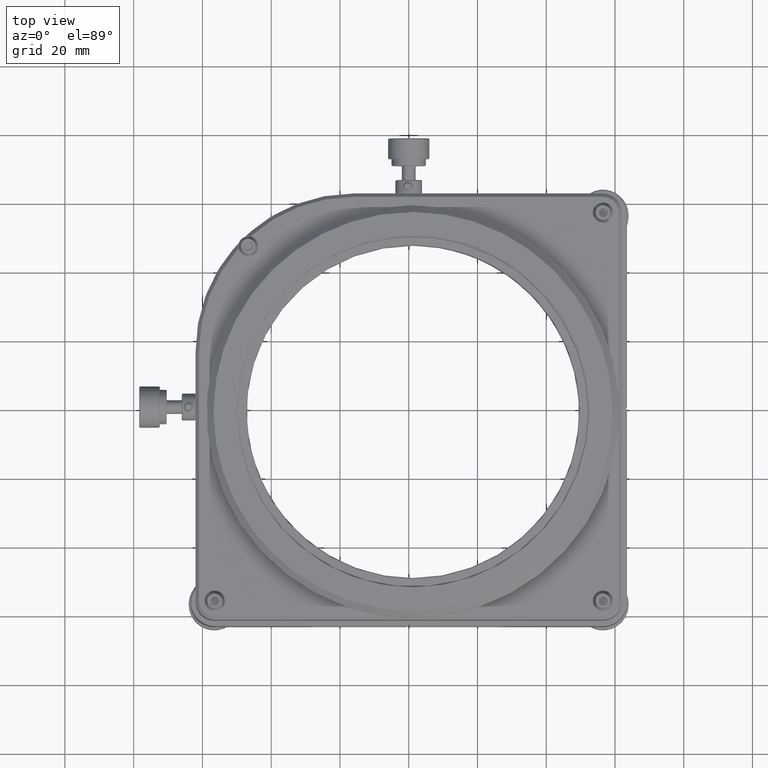
[diagram: clean part render]
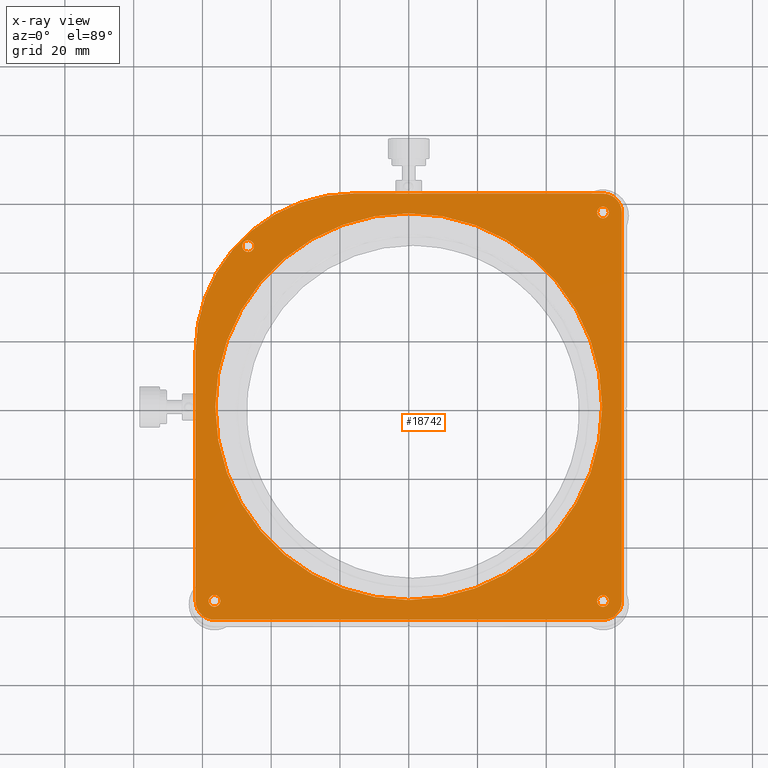
[diagram: x-ray — body ghosted, one internal face saturated and labeled with its STEP entity id]
A machine part, top view, then the same camera in x-ray: the body is ghosted and one INTERNAL B-rep face — a face not visible from any outside direction — is saturated and labeled: STEP entity #18742.
In plain terms, the highlighted planar face has unit normal (-0, 0, 1).
Its self-contained STEP definition (entity closure, byte-faithful):
#131 = DIRECTION ( 'NONE',  ( 2.886951366338683759E-18, -9.775351399719950602E-17, -1.000000000000000000 ) ) ;
#1608 = CARTESIAN_POINT ( 'NONE',  ( 56.49999999999891287, -58.20000000000066365, 27.49999999999998934 ) ) ;
#2148 = DIRECTION ( 'NONE',  ( 2.886951366338683759E-18, -9.775351399719950602E-17, -1.000000000000000000 ) ) ;
#3311 = DIRECTION ( 'NONE',  ( 0.000000000000000000, 1.000000000000000000, 0.000000000000000000 ) ) ;
#4623 = CARTESIAN_POINT ( 'NONE',  ( -1.178446937644093147E-12, -6.331053770638577055E-13, 27.49999999999998224 ) ) ;
#4962 = VERTEX_POINT ( 'NONE', #82286 ) ;
#6112 = DIRECTION ( 'NONE',  ( 0.000000000000000000, -1.000000000000000000, 1.233581138472396211E-16 ) ) ;
#8711 = AXIS2_PLACEMENT_3D ( 'NONE', #145058, #63014, #85291 ) ;
#9999 = CARTESIAN_POINT ( 'NONE',  ( 56.49999999999891287, -56.50000000000066080, 27.49999999999998934 ) ) ;
#10784 = ORIENTED_EDGE ( 'NONE', *, *, #137496, .F. ) ;
#11183 = CARTESIAN_POINT ( 'NONE',  ( 56.49999999999891287, -54.80000000000065796, 27.49999999999998934 ) ) ;
#12292 = AXIS2_PLACEMENT_3D ( 'NONE', #119202, #145952, #3311 ) ;
#12512 = ORIENTED_EDGE ( 'NONE', *, *, #90329, .F. ) ;
#13653 = CARTESIAN_POINT ( 'NONE',  ( -16.00000000000117240, 61.99999999999937472, 27.49999999999997513 ) ) ;
#14459 = CARTESIAN_POINT ( 'NONE',  ( -62.00000000000117240, -56.50000000000063238, 27.49999999999998934 ) ) ;
#14691 = EDGE_CURVE ( 'NONE', #140335, #51179, #38010, .T. ) ;
#16009 = AXIS2_PLACEMENT_3D ( 'NONE', #118087, #39556, #28070 ) ;
#18742 = ADVANCED_FACE ( 'NONE', ( #33456, #20422, #67257, #114796, #115560, #80288 ), #102524, .F. ) ;
#19019 = DIRECTION ( 'NONE',  ( 0.000000000000000000, 1.000000000000000000, 0.000000000000000000 ) ) ;
#19162 = CARTESIAN_POINT ( 'NONE',  ( -16.00000000000117240, 15.99999999999936939, 27.49999999999997868 ) ) ;
#20422 = FACE_BOUND ( 'NONE', #147707, .T. ) ;
#21959 = DIRECTION ( 'NONE',  ( 0.000000000000000000, -1.000000000000000000, 9.775351399719950602E-17 ) ) ;
#22043 = ORIENTED_EDGE ( 'NONE', *, *, #32434, .F. ) ;
#22291 = DIRECTION ( 'NONE',  ( 2.886951366338683759E-18, -9.775351399719950602E-17, -1.000000000000000000 ) ) ;
#22505 = ORIENTED_EDGE ( 'NONE', *, *, #38541, .F. ) ;
#22662 = CARTESIAN_POINT ( 'NONE',  ( -46.70000000000114682, 44.99999999999934630, 27.49999999999997868 ) ) ;
#24444 = AXIS2_PLACEMENT_3D ( 'NONE', #116690, #36081, #107450 ) ;
#25344 = EDGE_LOOP ( 'NONE', ( #101688, #73119 ) ) ;
#26059 = DIRECTION ( 'NONE',  ( 0.000000000000000000, -1.000000000000000000, 0.000000000000000000 ) ) ;
#28070 = DIRECTION ( 'NONE',  ( 0.000000000000000000, -1.000000000000000000, 0.000000000000000000 ) ) ;
#28456 = CARTESIAN_POINT ( 'NONE',  ( -1.178446937644093147E-12, -62.00000000000063238, 27.49999999999998934 ) ) ;
#29211 = LINE ( 'NONE', #28456, #106690 ) ;
#30087 = CARTESIAN_POINT ( 'NONE',  ( 56.49999999999882050, 61.99999999999938183, 27.49999999999997513 ) ) ;
#31554 = AXIS2_PLACEMENT_3D ( 'NONE', #61370, #37553, #26059 ) ;
#32434 = EDGE_CURVE ( 'NONE', #112220, #130636, #136920, .T. ) ;
#32471 = CARTESIAN_POINT ( 'NONE',  ( -46.70000000000114682, 48.39999999999934488, 27.49999999999997868 ) ) ;
#33456 = FACE_OUTER_BOUND ( 'NONE', #55376, .T. ) ;
#34003 = DIRECTION ( 'NONE',  ( 0.000000000000000000, -1.000000000000000000, 1.233581138472396211E-16 ) ) ;
#34953 = CARTESIAN_POINT ( 'NONE',  ( 56.49999999999873523, 54.79999999999935767, 27.49999999999997513 ) ) ;
#36049 = AXIS2_PLACEMENT_3D ( 'NONE', #129884, #93091, #34003 ) ;
#36081 = DIRECTION ( 'NONE',  ( -2.886951366338683759E-18, 9.775351399719950602E-17, 1.000000000000000000 ) ) ;
#37032 = AXIS2_PLACEMENT_3D ( 'NONE', #72015, #2148, #129533 ) ;
#37553 = DIRECTION ( 'NONE',  ( 2.886951366338683759E-18, -9.775351399719950602E-17, -1.000000000000000000 ) ) ;
#38010 = CIRCLE ( 'NONE', #16009, 1.700000000000000178 ) ;
#38114 = LINE ( 'NONE', #73469, #127103 ) ;
#38541 = EDGE_CURVE ( 'NONE', #4962, #119348, #79527, .T. ) ;
#39556 = DIRECTION ( 'NONE',  ( 2.886951366338683759E-18, -9.775351399719950602E-17, -1.000000000000000000 ) ) ;
#40246 = ORIENTED_EDGE ( 'NONE', *, *, #106632, .F. ) ;
#40300 = AXIS2_PLACEMENT_3D ( 'NONE', #101104, #127157, #19019 ) ;
#41903 = VERTEX_POINT ( 'NONE', #30087 ) ;
#41909 = EDGE_CURVE ( 'NONE', #122863, #71159, #86934, .T. ) ;
#42507 = CARTESIAN_POINT ( 'NONE',  ( 56.49999999999882760, -62.00000000000062528, 27.49999999999998934 ) ) ;
#42827 = ORIENTED_EDGE ( 'NONE', *, *, #70010, .F. ) ;
#42934 = DIRECTION ( 'NONE',  ( 0.000000000000000000, 1.000000000000000000, -7.542275982507857147E-17 ) ) ;
#43806 = ORIENTED_EDGE ( 'NONE', *, *, #109486, .F. ) ;
#49960 = ORIENTED_EDGE ( 'NONE', *, *, #90657, .F. ) ;
#51179 = VERTEX_POINT ( 'NONE', #22662 ) ;
#52186 = DIRECTION ( 'NONE',  ( -2.886951366338683759E-18, 9.775351399719950602E-17, 1.000000000000000000 ) ) ;
#55376 = EDGE_LOOP ( 'NONE', ( #94996, #42827, #72440, #22505, #58003, #12512, #40246, #55787 ) ) ;
#55787 = ORIENTED_EDGE ( 'NONE', *, *, #118260, .F. ) ;
#58003 = ORIENTED_EDGE ( 'NONE', *, *, #133935, .F. ) ;
#59845 = VERTEX_POINT ( 'NONE', #102974 ) ;
#61370 = CARTESIAN_POINT ( 'NONE',  ( 56.49999999999873523, 56.49999999999935341, 27.49999999999997513 ) ) ;
#61923 = DIRECTION ( 'NONE',  ( -1.000000000000000000, -2.822096407986227892E-34, -2.886951366338684144E-18 ) ) ;
#63014 = DIRECTION ( 'NONE',  ( 2.886951366338683759E-18, -9.775351399719950602E-17, -1.000000000000000000 ) ) ;
#63335 = CIRCLE ( 'NONE', #82937, 46.00000000000000000 ) ;
#65386 = DIRECTION ( 'NONE',  ( 2.886951366338683759E-18, -9.775351399719950602E-17, -1.000000000000000000 ) ) ;
#65976 = DIRECTION ( 'NONE',  ( 0.000000000000000000, -1.000000000000000000, 0.000000000000000000 ) ) ;
#67085 = CARTESIAN_POINT ( 'NONE',  ( 61.99999999999882050, 56.49999999999938183, 27.49999999999997513 ) ) ;
#67257 = FACE_BOUND ( 'NONE', #68012, .T. ) ;
#68012 = EDGE_LOOP ( 'NONE', ( #22043, #43806 ) ) ;
#69477 = EDGE_LOOP ( 'NONE', ( #49960, #115222 ) ) ;
#70010 = EDGE_CURVE ( 'NONE', #41903, #74049, #38114, .T. ) ;
#71018 = CIRCLE ( 'NONE', #24444, 5.499999999999998224 ) ;
#71159 = VERTEX_POINT ( 'NONE', #117520 ) ;
#72015 = CARTESIAN_POINT ( 'NONE',  ( 56.49999999999891287, -56.50000000000066080, 27.49999999999998934 ) ) ;
#72440 = ORIENTED_EDGE ( 'NONE', *, *, #120102, .F. ) ;
#72810 = CIRCLE ( 'NONE', #75206, 1.700000000000000178 ) ;
#73119 = ORIENTED_EDGE ( 'NONE', *, *, #41909, .F. ) ;
#73469 = CARTESIAN_POINT ( 'NONE',  ( -1.178446937644093147E-12, 61.99999999999938183, 27.49999999999997513 ) ) ;
#74049 = VERTEX_POINT ( 'NONE', #13653 ) ;
#74946 = CIRCLE ( 'NONE', #8711, 1.700000000000000178 ) ;
#75206 = AXIS2_PLACEMENT_3D ( 'NONE', #135764, #76753, #65976 ) ;
#76753 = DIRECTION ( 'NONE',  ( 2.886951366338683759E-18, -9.775351399719950602E-17, -1.000000000000000000 ) ) ;
#76874 = CARTESIAN_POINT ( 'NONE',  ( -62.00000000000117240, 15.99999999999936939, 27.49999999999998224 ) ) ;
#76926 = CARTESIAN_POINT ( 'NONE',  ( -56.50000000000115818, -56.50000000000063949, 27.49999999999998934 ) ) ;
#78446 = CIRCLE ( 'NONE', #12292, 5.499999999999998224 ) ;
#78910 = EDGE_CURVE ( 'NONE', #74049, #137969, #63335, .T. ) ;
#79364 = ORIENTED_EDGE ( 'NONE', *, *, #82551, .F. ) ;
#79437 = VERTEX_POINT ( 'NONE', #151091 ) ;
#79527 = LINE ( 'NONE', #135520, #98868 ) ;
#80288 = FACE_BOUND ( 'NONE', #69477, .T. ) ;
#82286 = CARTESIAN_POINT ( 'NONE',  ( 61.99999999999882760, -56.50000000000061817, 27.49999999999998934 ) ) ;
#82551 = EDGE_CURVE ( 'NONE', #143960, #83506, #115096, .T. ) ;
#82937 = AXIS2_PLACEMENT_3D ( 'NONE', #19162, #52186, #42934 ) ;
#83476 = ORIENTED_EDGE ( 'NONE', *, *, #144144, .F. ) ;
#83506 = VERTEX_POINT ( 'NONE', #11183 ) ;
#85291 = DIRECTION ( 'NONE',  ( 0.000000000000000000, -1.000000000000000000, 0.000000000000000000 ) ) ;
#86934 = CIRCLE ( 'NONE', #118800, 1.700000000000000178 ) ;
#90213 = CARTESIAN_POINT ( 'NONE',  ( -56.50000000000117240, -62.00000000000063238, 27.49999999999998934 ) ) ;
#90263 = EDGE_CURVE ( 'NONE', #71159, #122863, #116543, .T. ) ;
#90329 = EDGE_CURVE ( 'NONE', #99808, #118418, #29211, .T. ) ;
#90657 = EDGE_CURVE ( 'NONE', #51179, #140335, #74946, .T. ) ;
#90902 = CIRCLE ( 'NONE', #37032, 1.700000000000000178 ) ;
#91149 = EDGE_LOOP ( 'NONE', ( #79364, #131607 ) ) ;
#93091 = DIRECTION ( 'NONE',  ( 2.886951366338683759E-18, -9.775351399719950602E-17, -1.000000000000000000 ) ) ;
#94996 = ORIENTED_EDGE ( 'NONE', *, *, #78910, .F. ) ;
#97273 = CARTESIAN_POINT ( 'NONE',  ( -56.50000000000115818, -54.80000000000063665, 27.49999999999998934 ) ) ;
#98868 = VECTOR ( 'NONE', #114779, 1000.000000000000000 ) ;
#99808 = VERTEX_POINT ( 'NONE', #90213 ) ;
#100086 = CARTESIAN_POINT ( 'NONE',  ( -62.00000000000117240, -6.331053770638577055E-13, 27.49999999999998224 ) ) ;
#101104 = CARTESIAN_POINT ( 'NONE',  ( 56.49999999999882760, -56.50000000000061817, 27.49999999999998934 ) ) ;
#101688 = ORIENTED_EDGE ( 'NONE', *, *, #90263, .F. ) ;
#102524 = PLANE ( 'NONE',  #138269 ) ;
#102738 = VECTOR ( 'NONE', #123851, 1000.000000000000000 ) ;
#102974 = CARTESIAN_POINT ( 'NONE',  ( -1.171563928954053738E-12, 56.24999999999936762, 27.49999999999997513 ) ) ;
#103291 = CARTESIAN_POINT ( 'NONE',  ( -1.178446937644093147E-12, -6.331053770638577055E-13, 27.49999999999998224 ) ) ;
#106632 = EDGE_CURVE ( 'NONE', #125818, #99808, #71018, .T. ) ;
#106690 = VECTOR ( 'NONE', #120555, 1000.000000000000000 ) ;
#107450 = DIRECTION ( 'NONE',  ( 0.000000000000000000, 1.000000000000000000, 0.000000000000000000 ) ) ;
#107829 = AXIS2_PLACEMENT_3D ( 'NONE', #4623, #109025, #6112 ) ;
#109025 = DIRECTION ( 'NONE',  ( 2.886951366338683759E-18, -9.775351399719950602E-17, -1.000000000000000000 ) ) ;
#109486 = EDGE_CURVE ( 'NONE', #130636, #112220, #72810, .T. ) ;
#110222 = CIRCLE ( 'NONE', #107829, 56.25000000000000000 ) ;
#112220 = VERTEX_POINT ( 'NONE', #34953 ) ;
#114078 = AXIS2_PLACEMENT_3D ( 'NONE', #151296, #131, #129799 ) ;
#114779 = DIRECTION ( 'NONE',  ( -0.000000000000000000, 1.000000000000000000, -9.775351399719950602E-17 ) ) ;
#114796 = FACE_BOUND ( 'NONE', #91149, .T. ) ;
#115096 = CIRCLE ( 'NONE', #132322, 1.700000000000000178 ) ;
#115222 = ORIENTED_EDGE ( 'NONE', *, *, #14691, .F. ) ;
#115560 = FACE_BOUND ( 'NONE', #25344, .T. ) ;
#116543 = CIRCLE ( 'NONE', #114078, 1.700000000000000178 ) ;
#116690 = CARTESIAN_POINT ( 'NONE',  ( -56.50000000000117240, -56.50000000000063238, 27.49999999999998934 ) ) ;
#117520 = CARTESIAN_POINT ( 'NONE',  ( -56.50000000000115818, -58.20000000000064233, 27.49999999999998934 ) ) ;
#118087 = CARTESIAN_POINT ( 'NONE',  ( -46.70000000000114682, 46.69999999999934914, 27.49999999999997868 ) ) ;
#118260 = EDGE_CURVE ( 'NONE', #137969, #125818, #125339, .T. ) ;
#118418 = VERTEX_POINT ( 'NONE', #42507 ) ;
#118800 = AXIS2_PLACEMENT_3D ( 'NONE', #76926, #65386, #148190 ) ;
#119202 = CARTESIAN_POINT ( 'NONE',  ( 56.49999999999882050, 56.49999999999938183, 27.49999999999997513 ) ) ;
#119348 = VERTEX_POINT ( 'NONE', #67085 ) ;
#120102 = EDGE_CURVE ( 'NONE', #119348, #41903, #78446, .T. ) ;
#120555 = DIRECTION ( 'NONE',  ( 1.000000000000000000, 2.822096407986227892E-34, 2.886951366338684144E-18 ) ) ;
#121835 = CIRCLE ( 'NONE', #36049, 56.25000000000000000 ) ;
#122569 = EDGE_CURVE ( 'NONE', #83506, #143960, #90902, .T. ) ;
#122863 = VERTEX_POINT ( 'NONE', #97273 ) ;
#123851 = DIRECTION ( 'NONE',  ( 0.000000000000000000, -1.000000000000000000, 9.775351399719950602E-17 ) ) ;
#125339 = LINE ( 'NONE', #100086, #102738 ) ;
#125818 = VERTEX_POINT ( 'NONE', #14459 ) ;
#127066 = DIRECTION ( 'NONE',  ( -2.886951366338684144E-18, 9.775351399719950602E-17, 1.000000000000000000 ) ) ;
#127103 = VECTOR ( 'NONE', #61923, 1000.000000000000000 ) ;
#127157 = DIRECTION ( 'NONE',  ( -2.886951366338683759E-18, 9.775351399719950602E-17, 1.000000000000000000 ) ) ;
#128170 = DIRECTION ( 'NONE',  ( 0.000000000000000000, -1.000000000000000000, 0.000000000000000000 ) ) ;
#129533 = DIRECTION ( 'NONE',  ( 0.000000000000000000, -1.000000000000000000, 0.000000000000000000 ) ) ;
#129758 = CARTESIAN_POINT ( 'NONE',  ( 56.49999999999873523, 58.19999999999935625, 27.49999999999997513 ) ) ;
#129799 = DIRECTION ( 'NONE',  ( 0.000000000000000000, -1.000000000000000000, 0.000000000000000000 ) ) ;
#129884 = CARTESIAN_POINT ( 'NONE',  ( -1.178446937644093147E-12, -6.331053770638577055E-13, 27.49999999999998224 ) ) ;
#130636 = VERTEX_POINT ( 'NONE', #129758 ) ;
#131607 = ORIENTED_EDGE ( 'NONE', *, *, #122569, .F. ) ;
#132322 = AXIS2_PLACEMENT_3D ( 'NONE', #9999, #22291, #128170 ) ;
#133935 = EDGE_CURVE ( 'NONE', #118418, #4962, #143141, .T. ) ;
#135520 = CARTESIAN_POINT ( 'NONE',  ( 61.99999999999882760, -6.331053770638577055E-13, 27.49999999999998224 ) ) ;
#135764 = CARTESIAN_POINT ( 'NONE',  ( 56.49999999999873523, 56.49999999999935341, 27.49999999999997513 ) ) ;
#136920 = CIRCLE ( 'NONE', #31554, 1.700000000000000178 ) ;
#137496 = EDGE_CURVE ( 'NONE', #59845, #79437, #121835, .T. ) ;
#137969 = VERTEX_POINT ( 'NONE', #76874 ) ;
#138269 = AXIS2_PLACEMENT_3D ( 'NONE', #103291, #127066, #21959 ) ;
#140335 = VERTEX_POINT ( 'NONE', #32471 ) ;
#143141 = CIRCLE ( 'NONE', #40300, 5.499999999999998224 ) ;
#143960 = VERTEX_POINT ( 'NONE', #1608 ) ;
#144144 = EDGE_CURVE ( 'NONE', #79437, #59845, #110222, .T. ) ;
#145058 = CARTESIAN_POINT ( 'NONE',  ( -46.70000000000114682, 46.69999999999934914, 27.49999999999997868 ) ) ;
#145952 = DIRECTION ( 'NONE',  ( -2.886951366338683759E-18, 9.775351399719950602E-17, 1.000000000000000000 ) ) ;
#147707 = EDGE_LOOP ( 'NONE', ( #83476, #10784 ) ) ;
#148190 = DIRECTION ( 'NONE',  ( 0.000000000000000000, -1.000000000000000000, 0.000000000000000000 ) ) ;
#151091 = CARTESIAN_POINT ( 'NONE',  ( -1.178446937644093147E-12, -56.25000000000063238, 27.49999999999998934 ) ) ;
#151296 = CARTESIAN_POINT ( 'NONE',  ( -56.50000000000115818, -56.50000000000063949, 27.49999999999998934 ) ) ;